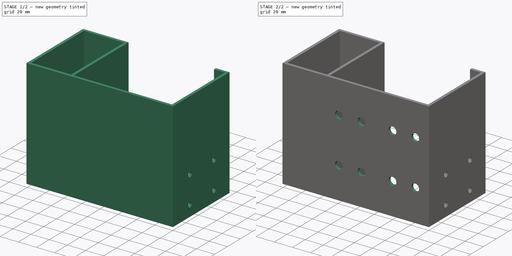
[diagram: build sequence overview — one tinted view per stage of 2, left to right]
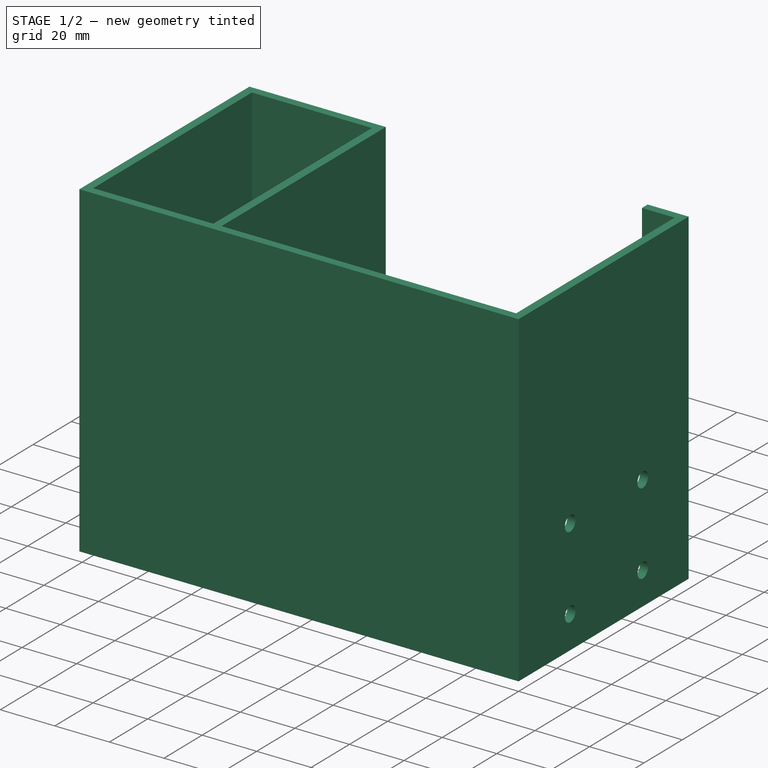
[diagram: stage 1 of 2 — iso view after this stage's code; geometry added in this stage tinted green]
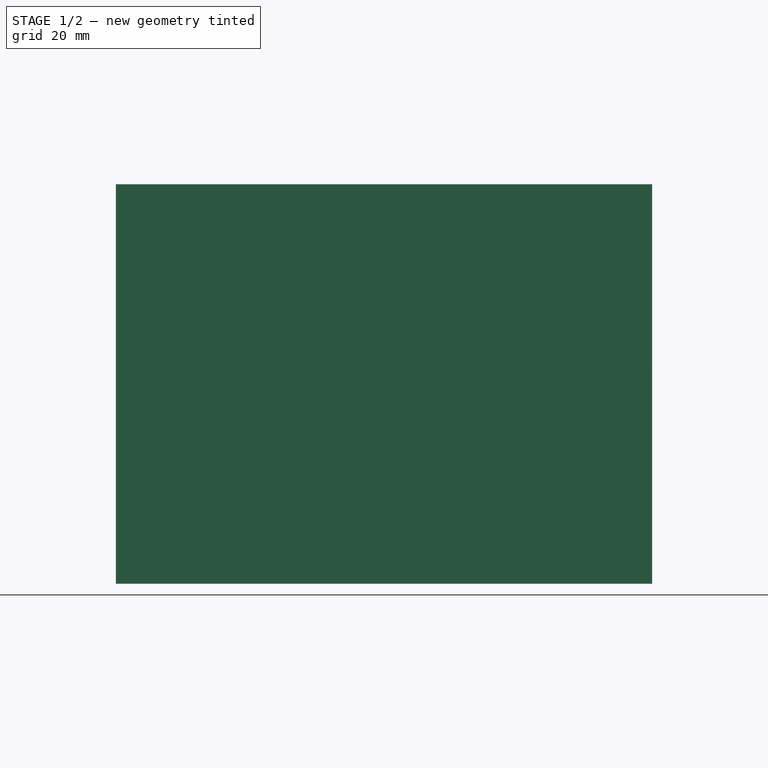
[diagram: stage 1 of 2 — front view after this stage's code; geometry added in this stage tinted green]
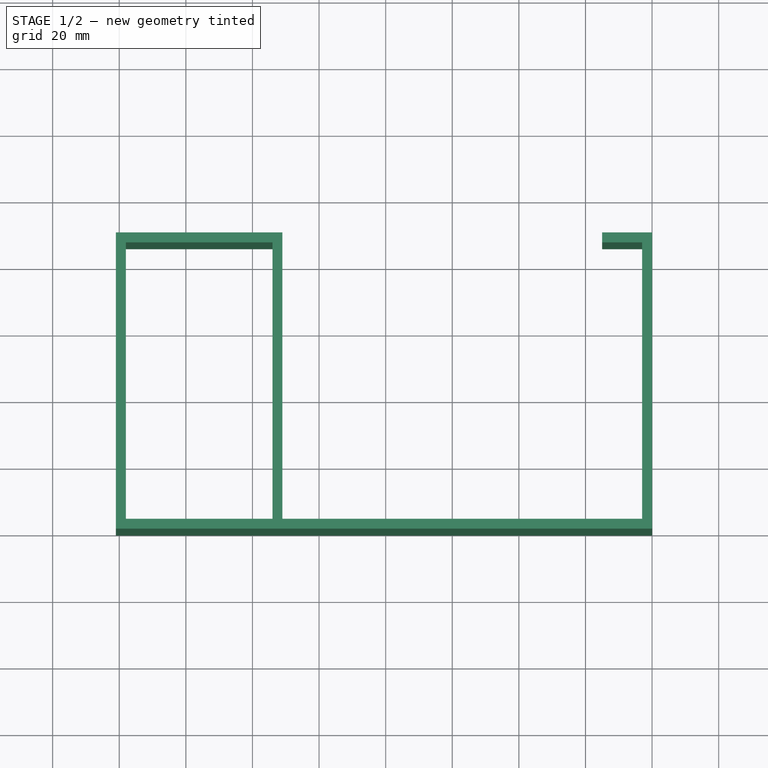
[diagram: stage 1 of 2 — top view after this stage's code; geometry added in this stage tinted green]
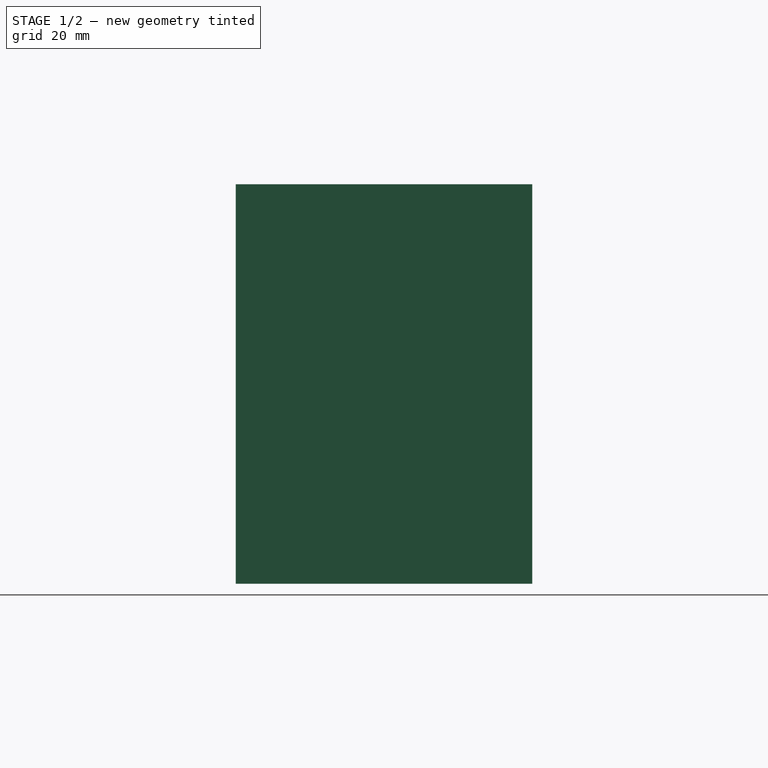
[diagram: stage 1 of 2 — right view after this stage's code; geometry added in this stage tinted green]
FCSTD DOCUMENT  (FreeCAD 0.19R)
Label: zbracket
License: All rights reserved
LicenseURL: http://en.wikipedia.org/wiki/All_rights_reserved
objects: PartDesign::CoordinateSystem×9, Sketcher::SketchObject×4, PartDesign::Pocket×3, PartDesign::Pad×1, PartDesign::Body×1
note: 22 computed .brp shape members not serialized (recipe doc carries the construction recipe); baked Part::Feature solids carry a one-line shape summary decoded from their .brp

FEATURE [Sketcher::SketchObject] Sketch
  FullyConstrained = true
  MapMode = 5
  Support = -> [XY_Plane]
  sketch-geometry (14):
    g0: LineSegment StartX=0 StartY=0 StartZ=0 EndX=-161 EndY=0 EndZ=0
    g1: LineSegment StartX=0 StartY=0 StartZ=0 EndX=0 EndY=89 EndZ=0
    g2: LineSegment StartX=-3 StartY=3 StartZ=0 EndX=-111 EndY=3 EndZ=0
    g3: LineSegment StartX=0 StartY=89 StartZ=0 EndX=-15 EndY=89 EndZ=0
    g4: LineSegment StartX=-111 StartY=3 StartZ=0 EndX=-111 EndY=89 EndZ=0
    g5: LineSegment StartX=-111 StartY=89 StartZ=0 EndX=-161 EndY=89 EndZ=0
    g6: LineSegment StartX=-161 StartY=0 StartZ=0 EndX=-161 EndY=89 EndZ=0
    g7: LineSegment StartX=-158 StartY=86 StartZ=0 EndX=-114 EndY=86 EndZ=0
    g8: LineSegment StartX=-114 StartY=86 StartZ=0 EndX=-114 EndY=3 EndZ=0
    g9: LineSegment StartX=-114 StartY=3 StartZ=0 EndX=-158 EndY=3 EndZ=0
    g10: LineSegment StartX=-158 StartY=3 StartZ=0 EndX=-158 EndY=86 EndZ=0
    g11: LineSegment StartX=-15 StartY=89 StartZ=0 EndX=-15 EndY=86 EndZ=0
    g12: LineSegment StartX=-15 StartY=86 StartZ=0 EndX=-3 EndY=86 EndZ=0
    g13: LineSegment StartX=-3 StartY=86 StartZ=0 EndX=-3 EndY=3 EndZ=0
  constraints (41):
    c: Coincident(g0,g-1)
    c: PointOnObject(g0,g-1)
    c: Coincident(g1,g0)
    c: PointOnObject(g1,g-2)
    c: Horizontal(g2)
    c: DistanceY(g1,g1) = 89
    c: Coincident(g3,g1)
    c: Horizontal(g3)
    c: DistanceX(g3,g3) = 15
    c: DistanceX(g2,g2) = 108
    c: Coincident(g4,g2)
    c: Vertical(g4)
    c: Coincident(g5,g4)
    c: Horizontal(g5)
    c: Coincident(g6,g0)
    c: Vertical(g6)
    c: Coincident(g5,g6)
    c: Equal(g1,g6)
    c: DistanceX(g5,g5) = 50
    c: DistanceY(g0,g2) = 3
    c: Coincident(g7,g8)
    c: Coincident(g8,g9)
    c: Coincident(g9,g10)
    c: Coincident(g10,g7)
    c: Horizontal(g7)
    c: Horizontal(g9)
    c: Vertical(g8)
    c: Vertical(g10)
    c: DistanceY(g0,g9) = 3
    c: DistanceY(g7,g4) = 3
    c: DistanceX(g7,g4) = 3
    c: DistanceX(g0,g9) = 3
    c: Coincident(g11,g3)
    c: Vertical(g11)
    c: Coincident(g12,g11)
    c: Horizontal(g12)
    c: Coincident(g13,g12)
    c: Coincident(g13,g2)
    c: Vertical(g13)
    c: DistanceX(g12,g1) = 3
    c: DistanceY(g11,g11) = 3
FEATURE [PartDesign::Pad] Pad
  Direction = (1,1,1)
  Length = 120
  Length2 = 100
  Profile = -> Sketch
  Type = 0
FEATURE [Sketcher::SketchObject] Sketch001
  ExternalGeometry = -> [Pad]
  FullyConstrained = true
  MapMode = 5
  Placement = pos=(0,0,0) rot=(0.57735,0.57735,0.57735;2.0944rad)
  Support = -> [Pad]
  sketch-geometry (4):
    g0: Circle CenterX=27 CenterY=42 CenterZ=0 NormalX=0 NormalY=0 NormalZ=1 AngleXU=0 Radius=2.75
    g1: Circle CenterX=65 CenterY=42 CenterZ=0 NormalX=0 NormalY=0 NormalZ=1 AngleXU=0 Radius=2.75
    g2: Circle CenterX=27 CenterY=12 CenterZ=0 NormalX=0 NormalY=0 NormalZ=1 AngleXU=0 Radius=2.75
    g3: Circle CenterX=65 CenterY=12 CenterZ=0 NormalX=0 NormalY=0 NormalZ=1 AngleXU=0 Radius=2.75
  constraints (12):
    c: Equal(g0,g1)
    c: Equal(g1,g3)
    c: Equal(g3,g2)
    c: Diameter(g1) = 5.5
    c: DistanceY(g2,g0) = 30
    c: DistanceY(g3,g1) = 30
    c: DistanceX(g0,g1) = 38
    c: DistanceX(g2,g3) = 38
    c: DistanceY(g-4,g3) = 12
    c: DistanceY(g-4,g2) = 12
    c: DistanceX(g-1,g2) = 27
    c: DistanceX(g-1,g0) = 27
FEATURE [PartDesign::Pocket] Pocket
  BaseFeature = -> Pad
  Length = 3
  Length2 = 100
  Profile = -> Sketch001
  Type = 0
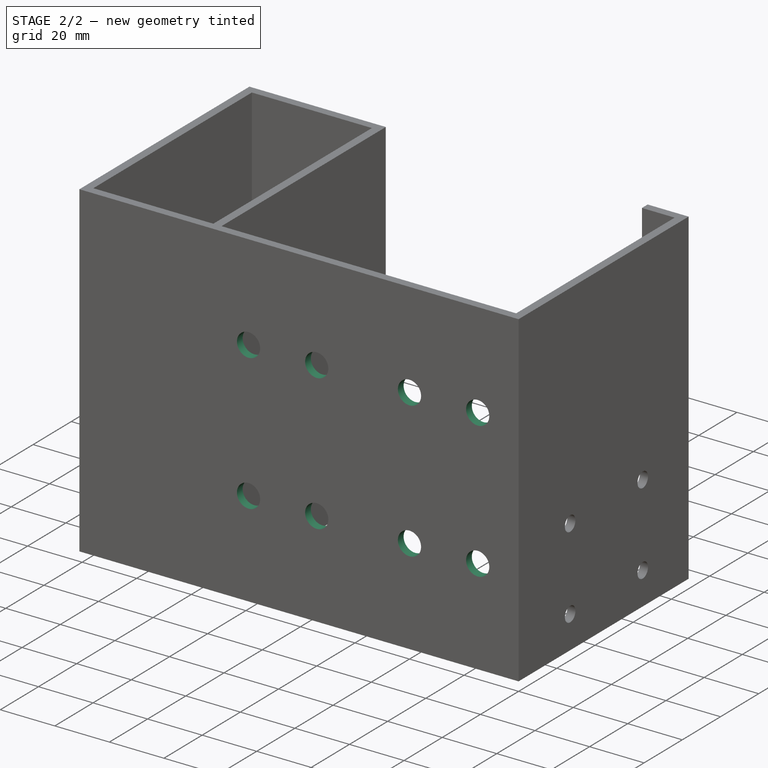
[diagram: stage 2 of 2 — iso view after this stage's code; geometry added in this stage tinted green]
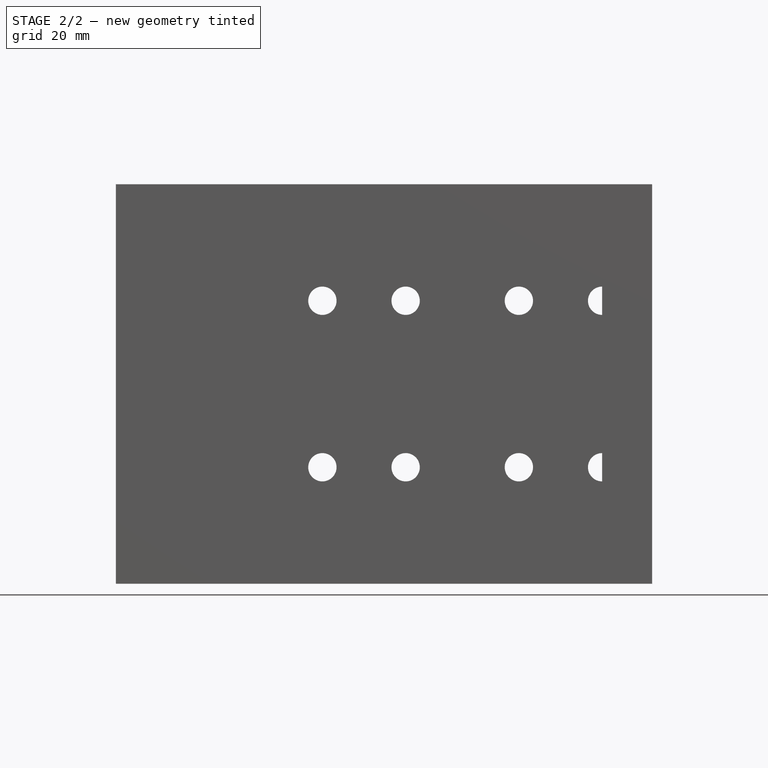
[diagram: stage 2 of 2 — front view after this stage's code; geometry added in this stage tinted green]
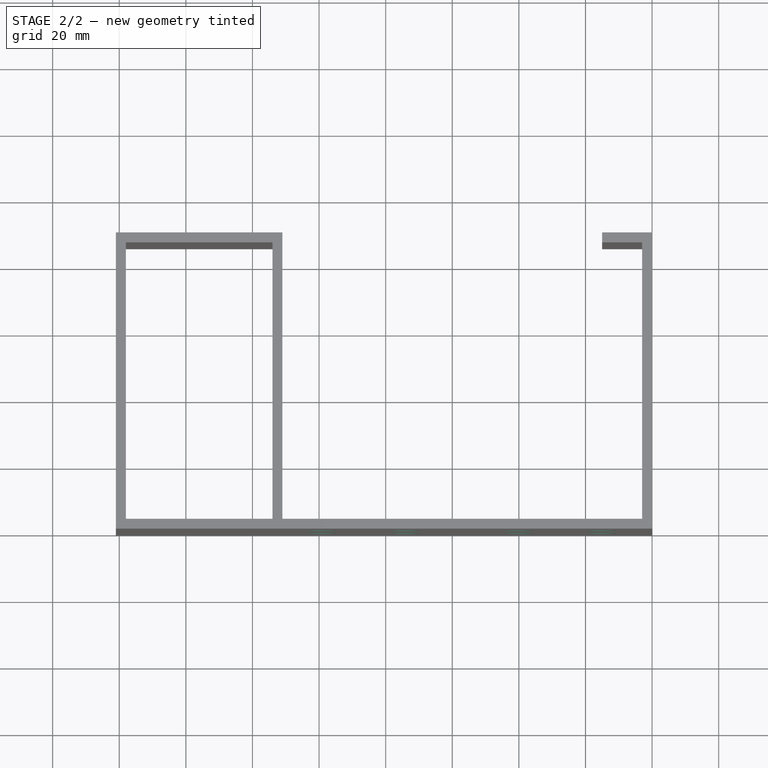
[diagram: stage 2 of 2 — top view after this stage's code; geometry added in this stage tinted green]
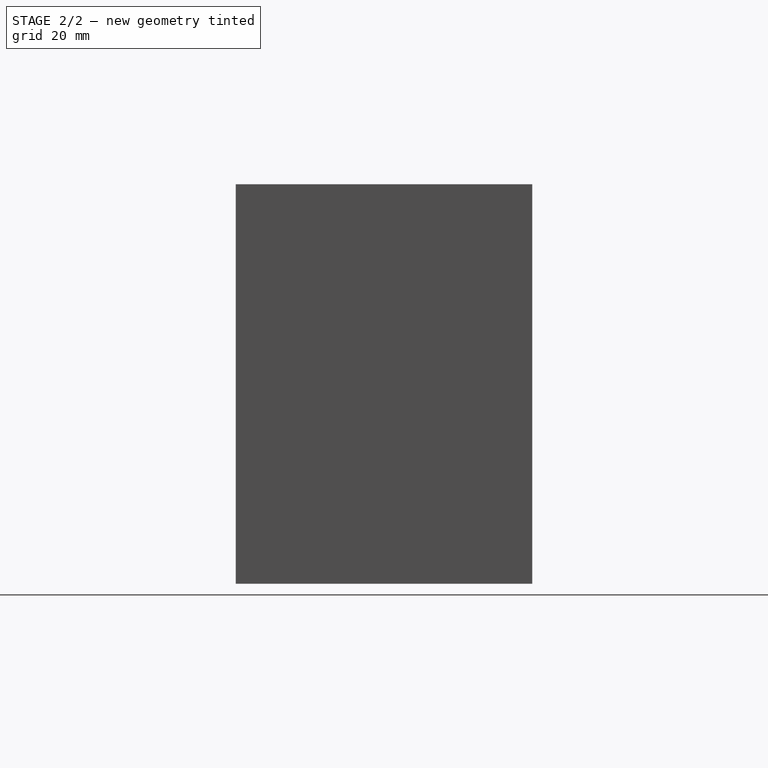
[diagram: stage 2 of 2 — right view after this stage's code; geometry added in this stage tinted green]
FEATURE [PartDesign::CoordinateSystem] LCS_h1
  AttacherType = Attacher::AttachEngine3D
  MapMode = 11
  Placement = pos=(-3,65,42) rot=(0.707107,0,0.707107;3.14159rad)
  Support = -> [Pocket]
FEATURE [PartDesign::CoordinateSystem] LCS_h2
  AttacherType = Attacher::AttachEngine3D
  MapMode = 11
  Placement = pos=(-3,65,12) rot=(0.707107,0,0.707107;3.14159rad)
  Support = -> [Pocket]
FEATURE [Sketcher::SketchObject] Sketch002
  ExternalGeometry = -> [Pocket]
  FullyConstrained = true
  MapMode = 5
  Placement = pos=(0,0,0) rot=(1,0,0;1.5708rad)
  Support = -> [Pocket]
  sketch-geometry (8):
    g0: Circle CenterX=-40 CenterY=85 CenterZ=0 NormalX=0 NormalY=0 NormalZ=1 AngleXU=0 Radius=4.25
    g1: Circle CenterX=-15 CenterY=85 CenterZ=0 NormalX=0 NormalY=0 NormalZ=1 AngleXU=0 Radius=4.25
    g2: Circle CenterX=-40 CenterY=35 CenterZ=0 NormalX=0 NormalY=0 NormalZ=1 AngleXU=0 Radius=4.25
    g3: Circle CenterX=-15 CenterY=35 CenterZ=0 NormalX=0 NormalY=0 NormalZ=1 AngleXU=0 Radius=4.25
    g4: Circle CenterX=-99 CenterY=85 CenterZ=0 NormalX=0 NormalY=0 NormalZ=1 AngleXU=0 Radius=4.25
    g5: Circle CenterX=-74 CenterY=85 CenterZ=0 NormalX=0 NormalY=0 NormalZ=1 AngleXU=0 Radius=4.25
    g6: Circle CenterX=-99 CenterY=35 CenterZ=0 NormalX=0 NormalY=0 NormalZ=1 AngleXU=0 Radius=4.25
    g7: Circle CenterX=-74 CenterY=35 CenterZ=0 NormalX=0 NormalY=0 NormalZ=1 AngleXU=0 Radius=4.25
  constraints (24):
    c: Equal(g3,g1)
    c: Equal(g1,g0)
    c: Equal(g0,g2)
    c: DistanceY(g2,g0) = 50
    c: DistanceY(g3,g1) = 50
    c: DistanceY(g-1,g3) = 35
    c: DistanceY(g-1,g2) = 35
    c: DistanceX(g3,g-1) = 15
    c: DistanceX(g2,g3) = 25
    c: DistanceX(g0,g1) = 25
    c: DistanceX(g1,g-1) = 15
    c: Equal(g7,g5)
    c: Equal(g5,g4)
    c: Equal(g4,g6)
    c: Equal(g1,g5) = 9
    c: DistanceY(g6,g4) = 50
    c: DistanceY(g7,g5) = 50
    c: DistanceX(g6,g7) = 25
    c: DistanceX(g4,g5) = 25
    c: Diameter(g5) = 8.5
    c: DistanceX(g-3,g6) = 15
    c: DistanceX(g-3,g4) = 15
    c: DistanceY(g-3,g6) = 35
    c: DistanceY(g-3,g7) = 35
FEATURE [PartDesign::Pocket] Pocket001
  BaseFeature = -> Pocket
  Length = 3
  Length2 = 100
  Profile = -> Sketch002
  Type = 0
FEATURE [PartDesign::CoordinateSystem] LCS_ho1
  AttacherType = Attacher::AttachEngine3D
  MapMode = 11
  Placement = pos=(0,65,42) rot=(0.707107,0,0.707107;3.14159rad)
  Support = -> [Pocket001]
FEATURE [PartDesign::CoordinateSystem] LCS_ho2
  AttacherType = Attacher::AttachEngine3D
  MapMode = 11
  Placement = pos=(0,65,12) rot=(0.707107,0,0.707107;3.14159rad)
  Support = -> [Pocket001]
FEATURE [PartDesign::CoordinateSystem] LCS_1
  AttacherType = Attacher::AttachEngine3D
  MapMode = 11
  Placement = pos=(-15,0,85) rot=(0.57735,-0.57735,0.57735;2.0944rad)
  Support = -> [Pocket001]
FEATURE [Sketcher::SketchObject] Sketch003
  ExternalGeometry = -> [Pocket001]
  FullyConstrained = true
  MapMode = 5
  Placement = pos=(-161,0,0) rot=(0.57735,-0.57735,-0.57735;2.0944rad)
  Support = -> [Pocket001]
  sketch-geometry (4):
    g0: Circle CenterX=-66 CenterY=47 CenterZ=0 NormalX=0 NormalY=0 NormalZ=1 AngleXU=0 Radius=2.75
    g1: Circle CenterX=-26 CenterY=47 CenterZ=0 NormalX=0 NormalY=0 NormalZ=1 AngleXU=0 Radius=2.75
    g2: Circle CenterX=-66 CenterY=23 CenterZ=0 NormalX=0 NormalY=0 NormalZ=1 AngleXU=0 Radius=2.75
    g3: Circle CenterX=-26 CenterY=23 CenterZ=0 NormalX=0 NormalY=0 NormalZ=1 AngleXU=0 Radius=2.75
  constraints (12):
    c: Equal(g2,g3)
    c: Equal(g3,g1)
    c: Equal(g1,g0)
    c: Diameter(g1) = 5.5
    c: DistanceY(g3,g1) = 24
    c: DistanceX(g0,g1) = 40
    c: DistanceY(g2,g0) = 24
    c: DistanceX(g2,g3) = 40
    c: DistanceY(g-1,g3) = 23
    c: DistanceY(g-1,g2) = 23
    c: DistanceX(g3,g-1) = 26
    c: DistanceX(g1,g-1) = 26
FEATURE [PartDesign::Pocket] Pocket002
  BaseFeature = -> Pocket001
  Length = 3
  Length2 = 100
  Profile = -> Sketch003
  Type = 0
FEATURE [PartDesign::CoordinateSystem] LCS_DSG16_MOUNT1
  AttacherType = Attacher::AttachEngine3D
  MapMode = 11
  Placement = pos=(-158,66,23) rot=(0,-1,0;1.5708rad)
  Support = -> [Pocket002]
FEATURE [PartDesign::CoordinateSystem] LCS_DSG16_MOUNT2
  AttacherType = Attacher::AttachEngine3D
  MapMode = 11
  Placement = pos=(-158,26,23) rot=(0,-1,0;1.5708rad)
  Support = -> [Pocket002]
FEATURE [PartDesign::CoordinateSystem] LCS_DSG16_MOUNT3
  AttacherType = Attacher::AttachEngine3D
  MapMode = 11
  Placement = pos=(-158,66,47) rot=(0,-1,0;1.5708rad)
  Support = -> [Pocket002]
FEATURE [PartDesign::CoordinateSystem] LCS_DSG16_MOUNT4
  AttacherType = Attacher::AttachEngine3D
  MapMode = 11
  Placement = pos=(-158,26,47) rot=(0,-1,0;1.5708rad)
  Support = -> [Pocket002]
FEATURE [PartDesign::Body] Body
  Group = -> [Sketch,Pad,Sketch001,Pocket,LCS_h1,LCS_h2,Sketch002,Pocket001,LCS_ho1,LCS_ho2,LCS_1,Sketch003,Pocket002,LCS_DSG16_MOUNT1,LCS_DSG16_MOUNT2,LCS_DSG16_MOUNT3,LCS_DSG16_MOUNT4]
  Origin = -> Origin
  Tip = -> Pocket002
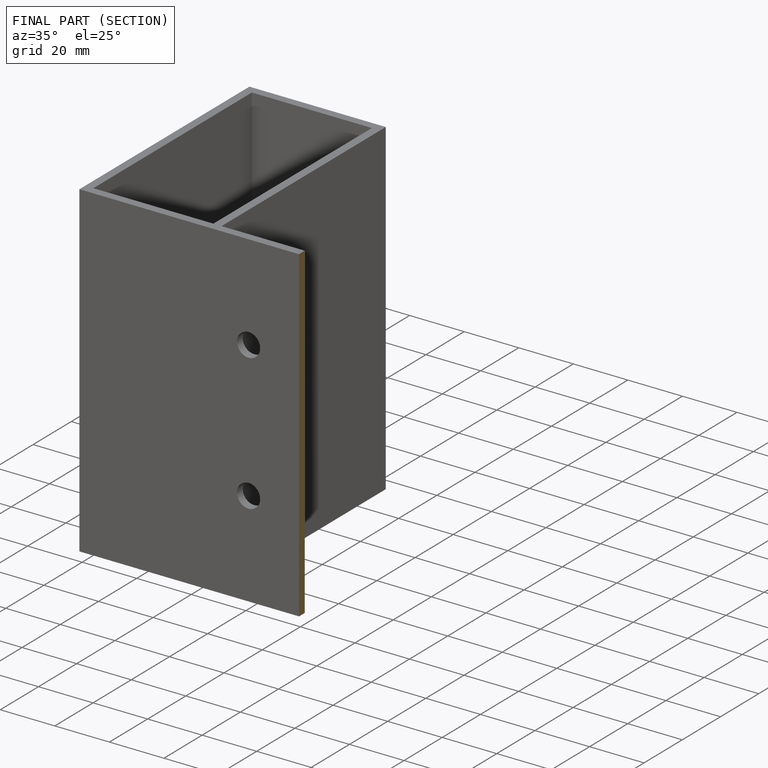
[diagram: finished part — half-section view (interior)]
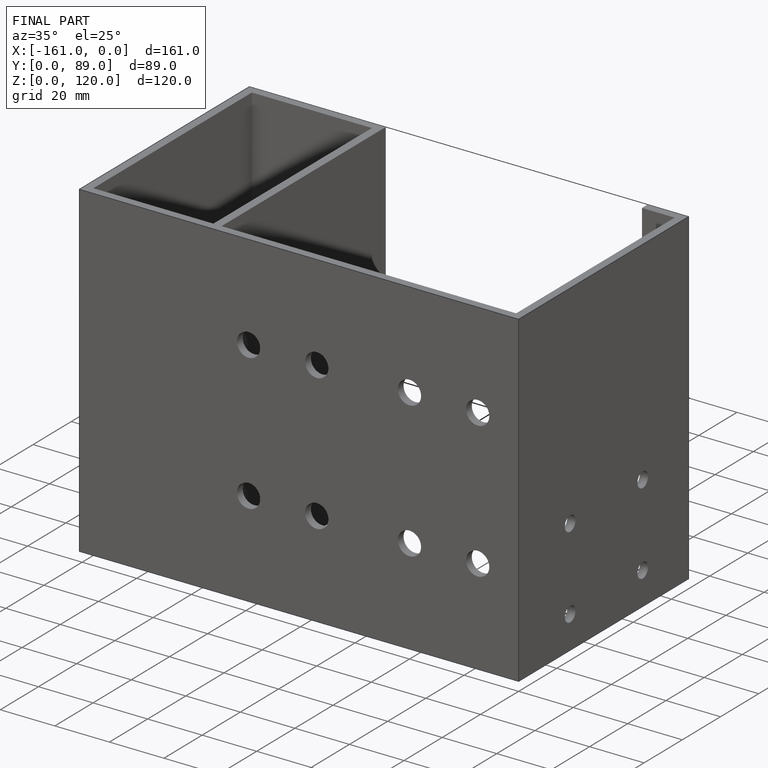
[diagram: finished part — iso view with bounding-box wireframe]
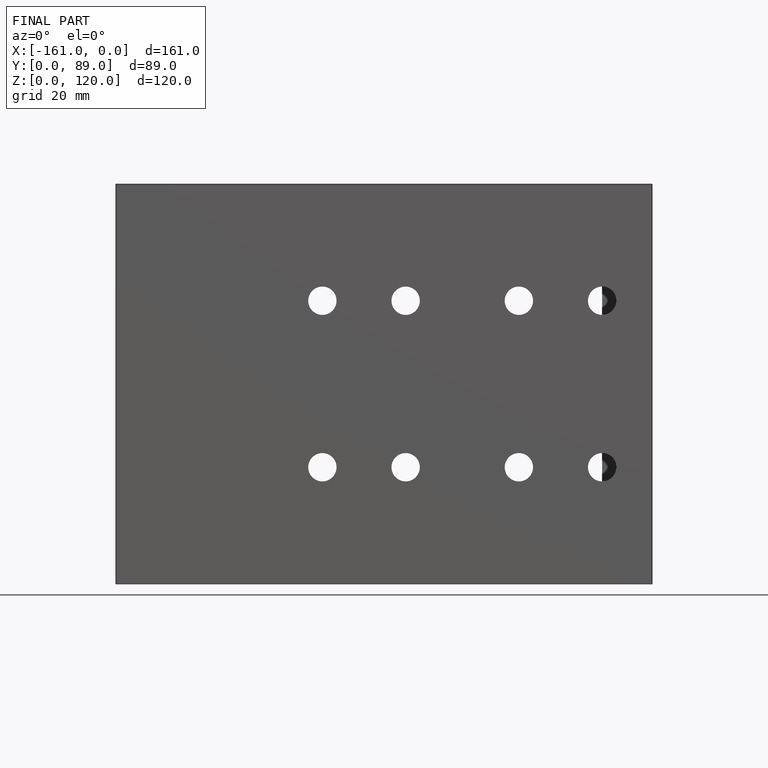
[diagram: finished part — front view with bounding-box wireframe]
